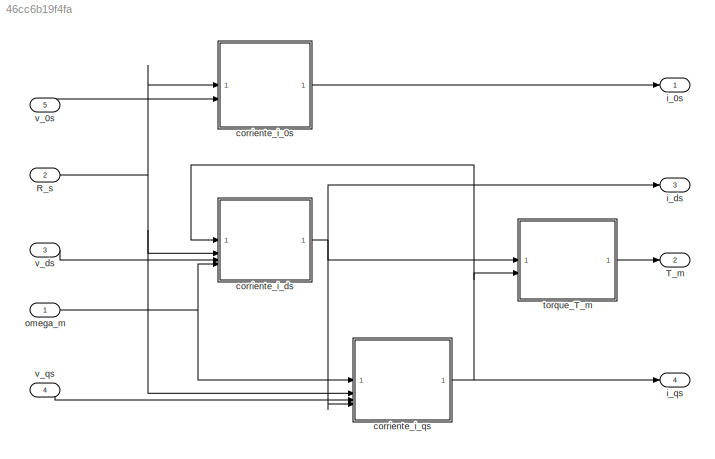
MODEL slx_46cc6b19f4fa
KIND model
CONFIG AbsTol = auto
CONFIG EnableMultiTasking = off
CONFIG FixedStep = auto
CONFIG MaxStep = auto
CONFIG MinStep = auto
CONFIG RelTol = 1e-3
CONFIG SampleTimeConstraint = Unconstrained
CONFIG SolverName = VariableStepAuto
CONFIG StartTime = 0.0
CONFIG StopTime = 10.0
BLOCK [Inport] R_s
  Port = 2
BLOCK [Outport] T_m
  Port = 2
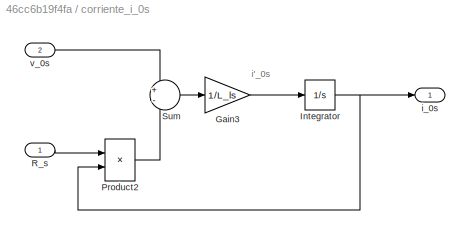
BLOCK [SubSystem] corriente_i_0s
BLOCK [Gain] corriente_i_0s/Gain3
  Gain = 1/L_ls
BLOCK [Integrator] corriente_i_0s/Integrator
BLOCK [Product] corriente_i_0s/Product2
BLOCK [Inport] corriente_i_0s/R_s
BLOCK [Sum] corriente_i_0s/Sum
  Inputs = +-
BLOCK [Outport] corriente_i_0s/i_0s
BLOCK [Inport] corriente_i_0s/v_0s
  Port = 2
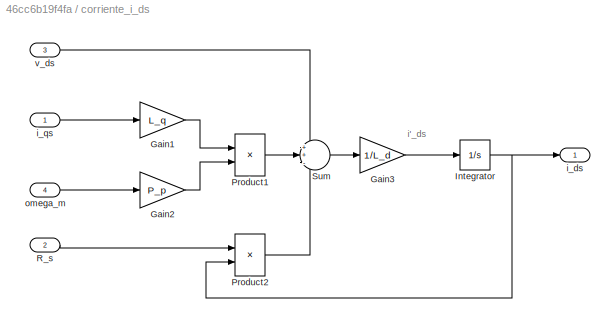
BLOCK [SubSystem] corriente_i_ds
BLOCK [Gain] corriente_i_ds/Gain1
  Gain = L_q
BLOCK [Gain] corriente_i_ds/Gain2
  Gain = P_p
BLOCK [Gain] corriente_i_ds/Gain3
  Gain = 1/L_d
BLOCK [Integrator] corriente_i_ds/Integrator
BLOCK [Product] corriente_i_ds/Product1
BLOCK [Product] corriente_i_ds/Product2
BLOCK [Inport] corriente_i_ds/R_s
  Port = 2
BLOCK [Sum] corriente_i_ds/Sum
  Inputs = ++-
BLOCK [Outport] corriente_i_ds/i_ds
BLOCK [Inport] corriente_i_ds/i_qs
BLOCK [Inport] corriente_i_ds/omega_m
  Port = 4
BLOCK [Inport] corriente_i_ds/v_ds
  Port = 3
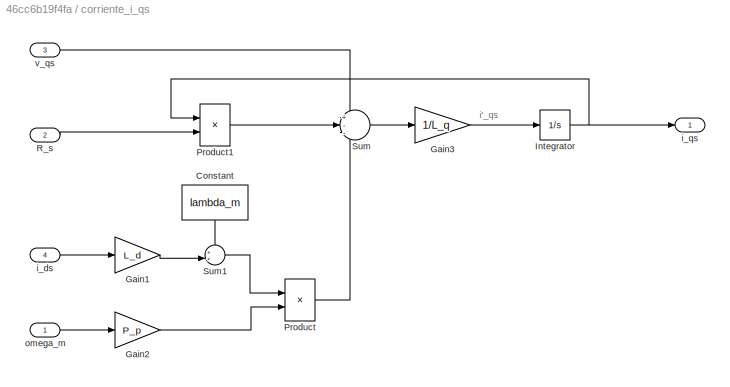
BLOCK [SubSystem] corriente_i_qs
BLOCK [Constant] corriente_i_qs/Constant
  NameLocation = left
  Value = lambda_m
BLOCK [Gain] corriente_i_qs/Gain1
  Gain = L_d
BLOCK [Gain] corriente_i_qs/Gain2
  Gain = P_p
BLOCK [Gain] corriente_i_qs/Gain3
  Gain = 1/L_q
BLOCK [Integrator] corriente_i_qs/Integrator
BLOCK [Product] corriente_i_qs/Product
BLOCK [Product] corriente_i_qs/Product1
BLOCK [Inport] corriente_i_qs/R_s
  Port = 2
BLOCK [Sum] corriente_i_qs/Sum
  Inputs = +--
BLOCK [Sum] corriente_i_qs/Sum1
  Inputs = ++|
BLOCK [Inport] corriente_i_qs/i_ds
  Port = 4
BLOCK [Outport] corriente_i_qs/i_qs
BLOCK [Inport] corriente_i_qs/omega_m
BLOCK [Inport] corriente_i_qs/v_qs
  Port = 3
BLOCK [Outport] i_0s
BLOCK [Outport] i_ds
  Port = 3
BLOCK [Outport] i_qs
  Port = 4
BLOCK [Inport] omega_m
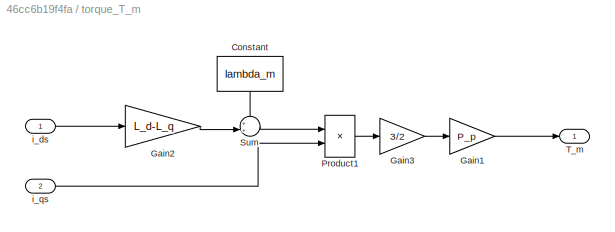
BLOCK [SubSystem] torque_T_m
BLOCK [Constant] torque_T_m/Constant
  NameLocation = left
  Value = lambda_m
BLOCK [Gain] torque_T_m/Gain1
  Gain = P_p
BLOCK [Gain] torque_T_m/Gain2
  Gain = L_d-L_q
BLOCK [Gain] torque_T_m/Gain3
  Gain = 3/2
BLOCK [Product] torque_T_m/Product1
BLOCK [Sum] torque_T_m/Sum
  Inputs = ++|
BLOCK [Outport] torque_T_m/T_m
BLOCK [Inport] torque_T_m/i_ds
BLOCK [Inport] torque_T_m/i_qs
  Port = 2
BLOCK [Inport] v_0s
  Port = 5
BLOCK [Inport] v_ds
  Port = 3
BLOCK [Inport] v_qs
  Port = 4
ANNOTATION corriente_i_0s: i'_0s
ANNOTATION corriente_i_ds: i'_ds
ANNOTATION corriente_i_qs: i'_qs
NET R_s:1 -> corriente_i_0s:1, corriente_i_ds:2, corriente_i_qs:2
LINE corriente_i_0s/Gain3:1 -> corriente_i_0s/Integrator:1
NET corriente_i_0s/Integrator:1 -> corriente_i_0s/Product2:2, corriente_i_0s/i_0s:1
LINE corriente_i_0s/Product2:1 -> corriente_i_0s/Sum:2
LINE corriente_i_0s/R_s:1 -> corriente_i_0s/Product2:1
LINE corriente_i_0s/Sum:1 -> corriente_i_0s/Gain3:1
LINE corriente_i_0s/v_0s:1 -> corriente_i_0s/Sum:1
LINE corriente_i_0s:1 -> i_0s:1
LINE corriente_i_ds/Gain1:1 -> corriente_i_ds/Product1:1
LINE corriente_i_ds/Gain2:1 -> corriente_i_ds/Product1:2
LINE corriente_i_ds/Gain3:1 -> corriente_i_ds/Integrator:1
NET corriente_i_ds/Integrator:1 -> corriente_i_ds/Product2:2, corriente_i_ds/i_ds:1
LINE corriente_i_ds/Product1:1 -> corriente_i_ds/Sum:2
LINE corriente_i_ds/Product2:1 -> corriente_i_ds/Sum:3
LINE corriente_i_ds/R_s:1 -> corriente_i_ds/Product2:1
LINE corriente_i_ds/Sum:1 -> corriente_i_ds/Gain3:1
LINE corriente_i_ds/i_qs:1 -> corriente_i_ds/Gain1:1
LINE corriente_i_ds/omega_m:1 -> corriente_i_ds/Gain2:1
LINE corriente_i_ds/v_ds:1 -> corriente_i_ds/Sum:1
NET corriente_i_ds:1 -> corriente_i_qs:4, i_ds:1, torque_T_m:1
LINE corriente_i_qs/Constant:1 -> corriente_i_qs/Sum1:1
LINE corriente_i_qs/Gain1:1 -> corriente_i_qs/Sum1:2
LINE corriente_i_qs/Gain2:1 -> corriente_i_qs/Product:2
LINE corriente_i_qs/Gain3:1 -> corriente_i_qs/Integrator:1
NET corriente_i_qs/Integrator:1 -> corriente_i_qs/Product1:1, corriente_i_qs/i_qs:1
LINE corriente_i_qs/Product1:1 -> corriente_i_qs/Sum:2
LINE corriente_i_qs/Product:1 -> corriente_i_qs/Sum:3
LINE corriente_i_qs/R_s:1 -> corriente_i_qs/Product1:2
LINE corriente_i_qs/Sum1:1 -> corriente_i_qs/Product:1
LINE corriente_i_qs/Sum:1 -> corriente_i_qs/Gain3:1
LINE corriente_i_qs/i_ds:1 -> corriente_i_qs/Gain1:1
LINE corriente_i_qs/omega_m:1 -> corriente_i_qs/Gain2:1
LINE corriente_i_qs/v_qs:1 -> corriente_i_qs/Sum:1
NET corriente_i_qs:1 -> corriente_i_ds:1, i_qs:1, torque_T_m:2
NET omega_m:1 -> corriente_i_ds:4, corriente_i_qs:1
LINE torque_T_m/Constant:1 -> torque_T_m/Sum:1
LINE torque_T_m/Gain1:1 -> torque_T_m/T_m:1
LINE torque_T_m/Gain2:1 -> torque_T_m/Sum:2
LINE torque_T_m/Gain3:1 -> torque_T_m/Gain1:1
LINE torque_T_m/Product1:1 -> torque_T_m/Gain3:1
LINE torque_T_m/Sum:1 -> torque_T_m/Product1:1
LINE torque_T_m/i_ds:1 -> torque_T_m/Gain2:1
LINE torque_T_m/i_qs:1 -> torque_T_m/Product1:2
LINE torque_T_m:1 -> T_m:1
LINE v_0s:1 -> corriente_i_0s:2
LINE v_ds:1 -> corriente_i_ds:3
LINE v_qs:1 -> corriente_i_qs:3
note: NET lines group one-source signal fan-out (src -> all destinations, sorted); 1:1 wires keep LINE
